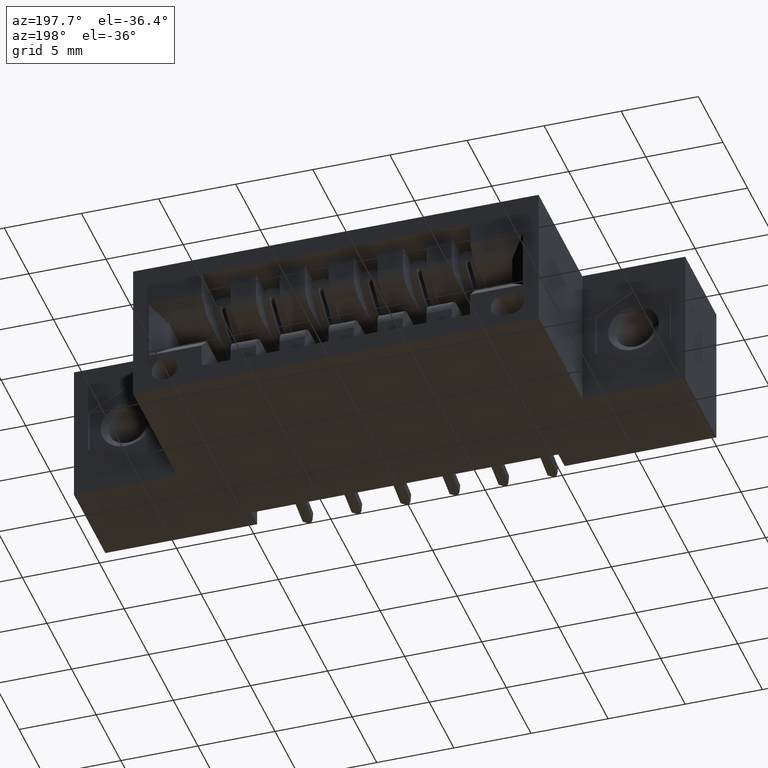
[diagram: clean part render]
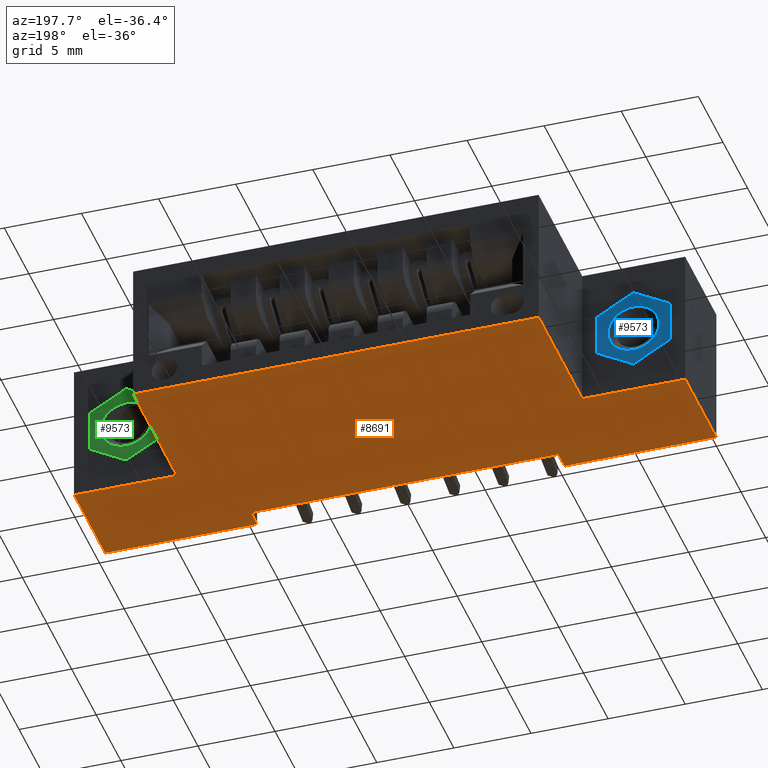
[diagram: same view with three faces highlighted in distinct colors, each labeled with its STEP entity id]
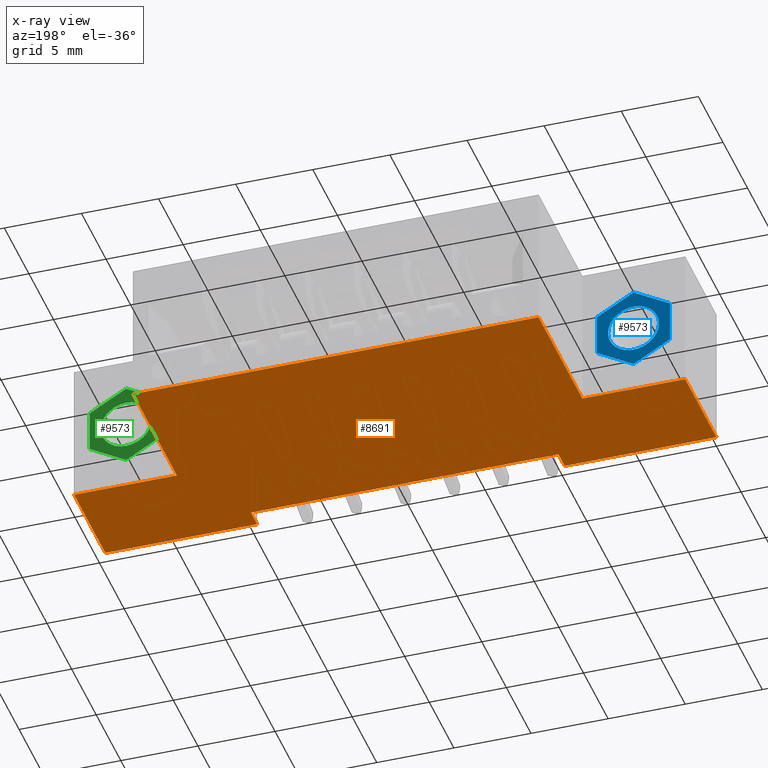
[diagram: x-ray of the same camera — body ghosted, the three highlighted faces saturated]
A machine part, auxiliary view with three faces highlighted in distinct colors.
The next image is the same camera in x-ray (body ghosted, the three faces saturated) — at least one of them is partly hidden behind the body in this view.
Their STEP definitions:

[orange] entity #8691 — the highlighted planar face has unit normal (-0, 0, 1).
#39 = DIRECTION ( 'NONE',  ( 1.000000000000000000, 0.0000000000000000000, 8.755923056616229400E-017 ) ) ;
#233 = VECTOR ( 'NONE', #1153, 39.37007874015748100 ) ;
#301 = CARTESIAN_POINT ( 'NONE',  ( 1.560000000000000100, 0.2500000000000001100, -0.3700000000000000000 ) ) ;
#335 = EDGE_CURVE ( 'NONE', #1226, #3853, #6356, .T. ) ;
#449 = VECTOR ( 'NONE', #8376, 39.37007874015748100 ) ;
#564 = CARTESIAN_POINT ( 'NONE',  ( 0.3874999999999999000, 0.05000000000000000300, -0.3700000000000001600 ) ) ;
#643 = VECTOR ( 'NONE', #8805, 39.37007874015748100 ) ;
#705 = VECTOR ( 'NONE', #853, 39.37007874015748100 ) ;
#770 = VERTEX_POINT ( 'NONE', #301 ) ;
#811 = EDGE_CURVE ( 'NONE', #8754, #1267, #5006, .T. ) ;
#824 = CARTESIAN_POINT ( 'NONE',  ( 0.0000000000000000000, 0.0000000000000000000, -0.3700000000000001600 ) ) ;
#832 = VECTOR ( 'NONE', #3348, 39.37007874015748100 ) ;
#853 = DIRECTION ( 'NONE',  ( -1.000000000000000000, -0.0000000000000000000, -8.755923056616228200E-017 ) ) ;
#871 = VERTEX_POINT ( 'NONE', #2312 ) ;
#1153 = DIRECTION ( 'NONE',  ( -0.0000000000000000000, -1.000000000000000000, -0.0000000000000000000 ) ) ;
#1170 = CARTESIAN_POINT ( 'NONE',  ( 1.297500000000000100, 0.5999999999999999800, -0.3699999999999999400 ) ) ;
#1226 = VERTEX_POINT ( 'NONE', #2952 ) ;
#1267 = VERTEX_POINT ( 'NONE', #7554 ) ;
#1428 = VERTEX_POINT ( 'NONE', #7823 ) ;
#1436 = CARTESIAN_POINT ( 'NONE',  ( 0.3874999999999999000, 0.05000000000000000300, -0.3700000000000001600 ) ) ;
#1544 = DIRECTION ( 'NONE',  ( 1.000000000000000000, 0.0000000000000000000, 1.740030569212906400E-016 ) ) ;
#2216 = CARTESIAN_POINT ( 'NONE',  ( 0.0000000000000000000, 0.5999999999999999800, -0.3700000000000001600 ) ) ;
#2312 = CARTESIAN_POINT ( 'NONE',  ( 1.172500000000000100, 0.0000000000000000000, -0.3700000000000000000 ) ) ;
#2395 = VECTOR ( 'NONE', #7687, 39.37007874015748100 ) ;
#2541 = LINE ( 'NONE', #9567, #449 ) ;
#2744 = ORIENTED_EDGE ( 'NONE', *, *, #4431, .T. ) ;
#2764 = CARTESIAN_POINT ( 'NONE',  ( 0.3874999999999999000, 0.05000000000000000300, -0.3700000000000001600 ) ) ;
#2952 = CARTESIAN_POINT ( 'NONE',  ( 0.2625000000000000100, 0.2500000000000000000, -0.3700000000000001600 ) ) ;
#3097 = CARTESIAN_POINT ( 'NONE',  ( 0.0000000000000000000, 0.0000000000000000000, -0.3700000000000001600 ) ) ;
#3248 = EDGE_CURVE ( 'NONE', #4095, #4345, #4841, .T. ) ;
#3287 = DIRECTION ( 'NONE',  ( -1.000000000000000000, -0.0000000000000000000, -0.0000000000000000000 ) ) ;
#3348 = DIRECTION ( 'NONE',  ( -0.0000000000000000000, 1.000000000000000000, -0.0000000000000000000 ) ) ;
#3500 = CARTESIAN_POINT ( 'NONE',  ( 0.0000000000000000000, 0.2500000000000000000, -0.3700000000000001600 ) ) ;
#3661 = DIRECTION ( 'NONE',  ( -1.000000000000000000, -0.0000000000000000000, -8.755923056616228200E-017 ) ) ;
#3853 = VERTEX_POINT ( 'NONE', #7157 ) ;
#4068 = VERTEX_POINT ( 'NONE', #4970 ) ;
#4095 = VERTEX_POINT ( 'NONE', #3500 ) ;
#4140 = VECTOR ( 'NONE', #3287, 39.37007874015748100 ) ;
#4176 = EDGE_CURVE ( 'NONE', #7069, #3853, #10116, .T. ) ;
#4345 = VERTEX_POINT ( 'NONE', #824 ) ;
#4431 = EDGE_CURVE ( 'NONE', #4068, #871, #5906, .T. ) ;
#4498 = DIRECTION ( 'NONE',  ( -0.0000000000000000000, -1.000000000000000000, -0.0000000000000000000 ) ) ;
#4538 = ORIENTED_EDGE ( 'NONE', *, *, #9475, .T. ) ;
#4669 = LINE ( 'NONE', #7193, #8190 ) ;
#4751 = CARTESIAN_POINT ( 'NONE',  ( 0.0000000000000000000, 0.5999999999999999800, -0.3700000000000001600 ) ) ;
#4841 = LINE ( 'NONE', #2216, #2395 ) ;
#4842 = CARTESIAN_POINT ( 'NONE',  ( 0.0000000000000000000, 0.0000000000000000000, -0.3700000000000001600 ) ) ;
#4900 = ORIENTED_EDGE ( 'NONE', *, *, #335, .T. ) ;
#4970 = CARTESIAN_POINT ( 'NONE',  ( 1.560000000000000100, 0.0000000000000000000, -0.3700000000000000000 ) ) ;
#5006 = LINE ( 'NONE', #564, #6827 ) ;
#5069 = ORIENTED_EDGE ( 'NONE', *, *, #3248, .F. ) ;
#5107 = LINE ( 'NONE', #1436, #8390 ) ;
#5839 = CARTESIAN_POINT ( 'NONE',  ( 1.560000000000000100, 0.5999999999999999800, -0.3700000000000000000 ) ) ;
#5906 = LINE ( 'NONE', #4842, #643 ) ;
#6128 = ORIENTED_EDGE ( 'NONE', *, *, #9195, .F. ) ;
#6133 = ORIENTED_EDGE ( 'NONE', *, *, #8654, .F. ) ;
#6354 = VECTOR ( 'NONE', #9819, 39.37007874015748100 ) ;
#6356 = LINE ( 'NONE', #7555, #832 ) ;
#6531 = ORIENTED_EDGE ( 'NONE', *, *, #6981, .T. ) ;
#6715 = LINE ( 'NONE', #6959, #4140 ) ;
#6762 = CARTESIAN_POINT ( 'NONE',  ( 0.0000000000000000000, 0.5999999999999999800, -0.3700000000000001600 ) ) ;
#6827 = VECTOR ( 'NONE', #4498, 39.37007874015748100 ) ;
#6864 = CARTESIAN_POINT ( 'NONE',  ( 1.172500000000000100, 0.05000000000000000300, -0.3700000000000000000 ) ) ;
#6959 = CARTESIAN_POINT ( 'NONE',  ( 0.0000000000000000000, 0.2500000000000000000, -0.3700000000000001600 ) ) ;
#6981 = EDGE_CURVE ( 'NONE', #1267, #4345, #7940, .T. ) ;
#7069 = VERTEX_POINT ( 'NONE', #1170 ) ;
#7090 = EDGE_CURVE ( 'NONE', #1428, #871, #7190, .T. ) ;
#7131 = PLANE ( 'NONE',  #9122 ) ;
#7157 = CARTESIAN_POINT ( 'NONE',  ( 0.2625000000000000100, 0.5999999999999999800, -0.3700000000000001600 ) ) ;
#7166 = DIRECTION ( 'NONE',  ( -8.755923056616229400E-017, 0.0000000000000000000, 1.000000000000000000 ) ) ;
#7190 = LINE ( 'NONE', #6864, #6354 ) ;
#7193 = CARTESIAN_POINT ( 'NONE',  ( 1.297500000000000100, 0.2500000000000000000, -0.3699999999999999400 ) ) ;
#7378 = ORIENTED_EDGE ( 'NONE', *, *, #9919, .F. ) ;
#7554 = CARTESIAN_POINT ( 'NONE',  ( 0.3874999999999999000, 0.0000000000000000000, -0.3700000000000001600 ) ) ;
#7555 = CARTESIAN_POINT ( 'NONE',  ( 0.2625000000000000100, 0.2500000000000000000, -0.3700000000000001600 ) ) ;
#7687 = DIRECTION ( 'NONE',  ( -0.0000000000000000000, -1.000000000000000000, -0.0000000000000000000 ) ) ;
#7823 = CARTESIAN_POINT ( 'NONE',  ( 1.172500000000000100, 0.05000000000000000300, -0.3700000000000000000 ) ) ;
#7940 = LINE ( 'NONE', #3097, #705 ) ;
#8190 = VECTOR ( 'NONE', #9498, 39.37007874015748100 ) ;
#8376 = DIRECTION ( 'NONE',  ( -1.000000000000000000, 0.0000000000000000000, 2.601759993965965000E-016 ) ) ;
#8390 = VECTOR ( 'NONE', #1544, 39.37007874015748100 ) ;
#8654 = EDGE_CURVE ( 'NONE', #8754, #1428, #5107, .T. ) ;
#8691 = ADVANCED_FACE ( 'NONE', ( #9759 ), #7131, .F. ) ;
#8754 = VERTEX_POINT ( 'NONE', #2764 ) ;
#8805 = DIRECTION ( 'NONE',  ( -1.000000000000000000, -0.0000000000000000000, -8.755923056616228200E-017 ) ) ;
#9122 = AXIS2_PLACEMENT_3D ( 'NONE', #4751, #7166, #39 ) ;
#9195 = EDGE_CURVE ( 'NONE', #9829, #7069, #4669, .T. ) ;
#9475 = EDGE_CURVE ( 'NONE', #770, #4068, #9662, .T. ) ;
#9498 = DIRECTION ( 'NONE',  ( -0.0000000000000000000, 1.000000000000000000, -0.0000000000000000000 ) ) ;
#9567 = CARTESIAN_POINT ( 'NONE',  ( 1.560000000000000100, 0.2500000000000000000, -0.3700000000000000000 ) ) ;
#9601 = EDGE_LOOP ( 'NONE', ( #9607, #6128, #10034, #4538, #2744, #9847, #6133, #10130, #6531, #5069, #7378, #4900 ) ) ;
#9607 = ORIENTED_EDGE ( 'NONE', *, *, #4176, .F. ) ;
#9662 = LINE ( 'NONE', #5839, #233 ) ;
#9759 = FACE_OUTER_BOUND ( 'NONE', #9601, .T. ) ;
#9819 = DIRECTION ( 'NONE',  ( -0.0000000000000000000, -1.000000000000000000, -0.0000000000000000000 ) ) ;
#9829 = VERTEX_POINT ( 'NONE', #9958 ) ;
#9847 = ORIENTED_EDGE ( 'NONE', *, *, #7090, .F. ) ;
#9848 = VECTOR ( 'NONE', #3661, 39.37007874015748100 ) ;
#9919 = EDGE_CURVE ( 'NONE', #1226, #4095, #6715, .T. ) ;
#9958 = CARTESIAN_POINT ( 'NONE',  ( 1.297500000000000100, 0.2500000000000000000, -0.3699999999999999400 ) ) ;
#10034 = ORIENTED_EDGE ( 'NONE', *, *, #10083, .F. ) ;
#10083 = EDGE_CURVE ( 'NONE', #770, #9829, #2541, .T. ) ;
#10116 = LINE ( 'NONE', #6762, #9848 ) ;
#10130 = ORIENTED_EDGE ( 'NONE', *, *, #811, .T. ) ;

[blue] entity #9573 — the highlighted planar face has unit normal (0, -1, 0).
#124 = CARTESIAN_POINT ( 'NONE',  ( -5.122214988120493300E-016, 0.0000000000000000000, 0.1079645003384601700 ) ) ;
#227 = CARTESIAN_POINT ( 'NONE',  ( 1.707404996040164500E-017, -6.829619984160658000E-017, -0.06500000000000000200 ) ) ;
#714 = CARTESIAN_POINT ( 'NONE',  ( -0.09349999999999994400, 0.0000000000000000000, 0.05398225016923036100 ) ) ;
#782 = EDGE_CURVE ( 'NONE', #4773, #2966, #7309, .T. ) ;
#1257 = ORIENTED_EDGE ( 'NONE', *, *, #9733, .F. ) ;
#1349 = CARTESIAN_POINT ( 'NONE',  ( -0.09349999999999997200, 0.0000000000000000000, -0.05398225016922977800 ) ) ;
#1531 = VERTEX_POINT ( 'NONE', #227 ) ;
#1582 = FACE_OUTER_BOUND ( 'NONE', #10000, .T. ) ;
#1807 = CIRCLE ( 'NONE', #9566, 0.06500000000000019700 ) ;
#2094 = CARTESIAN_POINT ( 'NONE',  ( 0.09349999999999943100, 0.0000000000000000000, -0.05398225016923001400 ) ) ;
#2375 = EDGE_CURVE ( 'NONE', #2702, #2801, #7793, .T. ) ;
#2396 = ORIENTED_EDGE ( 'NONE', *, *, #2375, .F. ) ;
#2414 = ORIENTED_EDGE ( 'NONE', *, *, #8858, .F. ) ;
#2440 = EDGE_CURVE ( 'NONE', #8240, #1531, #1807, .T. ) ;
#2459 = DIRECTION ( 'NONE',  ( 0.0000000000000000000, 0.0000000000000000000, 1.000000000000000000 ) ) ;
#2702 = VERTEX_POINT ( 'NONE', #9905 ) ;
#2798 = LINE ( 'NONE', #9229, #5485 ) ;
#2801 = VERTEX_POINT ( 'NONE', #1349 ) ;
#2902 = DIRECTION ( 'NONE',  ( 0.0000000000000000000, 0.0000000000000000000, 1.000000000000000000 ) ) ;
#2966 = VERTEX_POINT ( 'NONE', #124 ) ;
#3155 = CARTESIAN_POINT ( 'NONE',  ( 0.09349999999999998600, 0.0000000000000000000, 0.05398225016923022300 ) ) ;
#3183 = FACE_BOUND ( 'NONE', #4312, .T. ) ;
#3201 = CARTESIAN_POINT ( 'NONE',  ( 1.707404996040164500E-017, -6.829619984160658000E-017, 2.048885995248197400E-016 ) ) ;
#3247 = CARTESIAN_POINT ( 'NONE',  ( 0.09349999999999998600, 0.0000000000000000000, 0.05398225016923022300 ) ) ;
#3313 = ORIENTED_EDGE ( 'NONE', *, *, #7231, .F. ) ;
#3447 = CARTESIAN_POINT ( 'NONE',  ( 1.707404996040164500E-017, -6.829619984160658000E-017, 2.048885995248197400E-016 ) ) ;
#3707 = PLANE ( 'NONE',  #9489 ) ;
#3855 = DIRECTION ( 'NONE',  ( 0.0000000000000000000, -1.000000000000000000, 0.0000000000000000000 ) ) ;
#3892 = VECTOR ( 'NONE', #6829, 39.37007874015748100 ) ;
#4123 = DIRECTION ( 'NONE',  ( 0.0000000000000000000, -1.000000000000000000, 0.0000000000000000000 ) ) ;
#4312 = EDGE_LOOP ( 'NONE', ( #3313, #5482 ) ) ;
#4399 = ORIENTED_EDGE ( 'NONE', *, *, #5073, .F. ) ;
#4773 = VERTEX_POINT ( 'NONE', #714 ) ;
#5031 = ORIENTED_EDGE ( 'NONE', *, *, #6105, .F. ) ;
#5073 = EDGE_CURVE ( 'NONE', #2966, #5673, #9706, .T. ) ;
#5156 = CARTESIAN_POINT ( 'NONE',  ( -0.09349999999999994400, 0.0000000000000000000, 0.05398225016923036100 ) ) ;
#5482 = ORIENTED_EDGE ( 'NONE', *, *, #2440, .F. ) ;
#5485 = VECTOR ( 'NONE', #2459, 39.37007874015748100 ) ;
#5673 = VERTEX_POINT ( 'NONE', #3155 ) ;
#5883 = CARTESIAN_POINT ( 'NONE',  ( 2.503425415485946300E-017, -6.829619984160658000E-017, 0.06500000000000040500 ) ) ;
#5972 = CIRCLE ( 'NONE', #6222, 0.06500000000000019700 ) ;
#6105 = EDGE_CURVE ( 'NONE', #5673, #7969, #7334, .T. ) ;
#6222 = AXIS2_PLACEMENT_3D ( 'NONE', #3201, #3855, #8686 ) ;
#6241 = DIRECTION ( 'NONE',  ( -0.8660254037844384900, 0.0000000000000000000, -0.5000000000000002200 ) ) ;
#6283 = DIRECTION ( 'NONE',  ( -0.8660254037844386000, 0.0000000000000000000, 0.5000000000000000000 ) ) ;
#6450 = DIRECTION ( 'NONE',  ( 0.0000000000000000000, 0.0000000000000000000, -1.000000000000000000 ) ) ;
#6518 = CARTESIAN_POINT ( 'NONE',  ( 0.09349999999999943100, 0.0000000000000000000, -0.05398225016923001400 ) ) ;
#6829 = DIRECTION ( 'NONE',  ( 0.8660254037844389300, 0.0000000000000000000, 0.4999999999999994400 ) ) ;
#6917 = DIRECTION ( 'NONE',  ( 0.0000000000000000000, 1.000000000000000000, 0.0000000000000000000 ) ) ;
#7185 = DIRECTION ( 'NONE',  ( -1.276756478318928800E-015, 0.0000000000000000000, -1.000000000000000000 ) ) ;
#7231 = EDGE_CURVE ( 'NONE', #1531, #8240, #5972, .T. ) ;
#7309 = LINE ( 'NONE', #5156, #3892 ) ;
#7334 = LINE ( 'NONE', #3247, #7838 ) ;
#7415 = LINE ( 'NONE', #2094, #9756 ) ;
#7457 = ORIENTED_EDGE ( 'NONE', *, *, #782, .F. ) ;
#7597 = CARTESIAN_POINT ( 'NONE',  ( 3.414809992080329000E-017, 0.0000000000000000000, -0.1079645003384598500 ) ) ;
#7600 = VECTOR ( 'NONE', #8744, 39.37007874015748100 ) ;
#7793 = LINE ( 'NONE', #7919, #9885 ) ;
#7838 = VECTOR ( 'NONE', #7185, 39.37007874015748100 ) ;
#7919 = CARTESIAN_POINT ( 'NONE',  ( 3.414809992080329000E-017, 0.0000000000000000000, -0.1079645003384598500 ) ) ;
#7969 = VERTEX_POINT ( 'NONE', #6518 ) ;
#8240 = VERTEX_POINT ( 'NONE', #5883 ) ;
#8686 = DIRECTION ( 'NONE',  ( 0.0000000000000000000, 0.0000000000000000000, -1.000000000000000000 ) ) ;
#8744 = DIRECTION ( 'NONE',  ( 0.8660254037844389300, 0.0000000000000000000, -0.4999999999999994400 ) ) ;
#8858 = EDGE_CURVE ( 'NONE', #7969, #2702, #7415, .T. ) ;
#9229 = CARTESIAN_POINT ( 'NONE',  ( -0.09349999999999997200, 0.0000000000000000000, -0.05398225016922977800 ) ) ;
#9274 = CARTESIAN_POINT ( 'NONE',  ( -5.122214988120493300E-016, 0.0000000000000000000, 0.1079645003384601700 ) ) ;
#9489 = AXIS2_PLACEMENT_3D ( 'NONE', #7597, #6917, #2902 ) ;
#9566 = AXIS2_PLACEMENT_3D ( 'NONE', #3447, #4123, #6450 ) ;
#9573 = ADVANCED_FACE ( 'NONE', ( #3183, #1582 ), #3707, .F. ) ;
#9706 = LINE ( 'NONE', #9274, #7600 ) ;
#9733 = EDGE_CURVE ( 'NONE', #2801, #4773, #2798, .T. ) ;
#9756 = VECTOR ( 'NONE', #6241, 39.37007874015748900 ) ;
#9885 = VECTOR ( 'NONE', #6283, 39.37007874015748100 ) ;
#9905 = CARTESIAN_POINT ( 'NONE',  ( 3.414809992080329000E-017, 0.0000000000000000000, -0.1079645003384598500 ) ) ;
#10000 = EDGE_LOOP ( 'NONE', ( #2414, #5031, #4399, #7457, #1257, #2396 ) ) ;

[green] entity #9573 — the highlighted planar face has unit normal (0, -1, 0).
#124 = CARTESIAN_POINT ( 'NONE',  ( -5.122214988120493300E-016, 0.0000000000000000000, 0.1079645003384601700 ) ) ;
#227 = CARTESIAN_POINT ( 'NONE',  ( 1.707404996040164500E-017, -6.829619984160658000E-017, -0.06500000000000000200 ) ) ;
#714 = CARTESIAN_POINT ( 'NONE',  ( -0.09349999999999994400, 0.0000000000000000000, 0.05398225016923036100 ) ) ;
#782 = EDGE_CURVE ( 'NONE', #4773, #2966, #7309, .T. ) ;
#1257 = ORIENTED_EDGE ( 'NONE', *, *, #9733, .F. ) ;
#1349 = CARTESIAN_POINT ( 'NONE',  ( -0.09349999999999997200, 0.0000000000000000000, -0.05398225016922977800 ) ) ;
#1531 = VERTEX_POINT ( 'NONE', #227 ) ;
#1582 = FACE_OUTER_BOUND ( 'NONE', #10000, .T. ) ;
#1807 = CIRCLE ( 'NONE', #9566, 0.06500000000000019700 ) ;
#2094 = CARTESIAN_POINT ( 'NONE',  ( 0.09349999999999943100, 0.0000000000000000000, -0.05398225016923001400 ) ) ;
#2375 = EDGE_CURVE ( 'NONE', #2702, #2801, #7793, .T. ) ;
#2396 = ORIENTED_EDGE ( 'NONE', *, *, #2375, .F. ) ;
#2414 = ORIENTED_EDGE ( 'NONE', *, *, #8858, .F. ) ;
#2440 = EDGE_CURVE ( 'NONE', #8240, #1531, #1807, .T. ) ;
#2459 = DIRECTION ( 'NONE',  ( 0.0000000000000000000, 0.0000000000000000000, 1.000000000000000000 ) ) ;
#2702 = VERTEX_POINT ( 'NONE', #9905 ) ;
#2798 = LINE ( 'NONE', #9229, #5485 ) ;
#2801 = VERTEX_POINT ( 'NONE', #1349 ) ;
#2902 = DIRECTION ( 'NONE',  ( 0.0000000000000000000, 0.0000000000000000000, 1.000000000000000000 ) ) ;
#2966 = VERTEX_POINT ( 'NONE', #124 ) ;
#3155 = CARTESIAN_POINT ( 'NONE',  ( 0.09349999999999998600, 0.0000000000000000000, 0.05398225016923022300 ) ) ;
#3183 = FACE_BOUND ( 'NONE', #4312, .T. ) ;
#3201 = CARTESIAN_POINT ( 'NONE',  ( 1.707404996040164500E-017, -6.829619984160658000E-017, 2.048885995248197400E-016 ) ) ;
#3247 = CARTESIAN_POINT ( 'NONE',  ( 0.09349999999999998600, 0.0000000000000000000, 0.05398225016923022300 ) ) ;
#3313 = ORIENTED_EDGE ( 'NONE', *, *, #7231, .F. ) ;
#3447 = CARTESIAN_POINT ( 'NONE',  ( 1.707404996040164500E-017, -6.829619984160658000E-017, 2.048885995248197400E-016 ) ) ;
#3707 = PLANE ( 'NONE',  #9489 ) ;
#3855 = DIRECTION ( 'NONE',  ( 0.0000000000000000000, -1.000000000000000000, 0.0000000000000000000 ) ) ;
#3892 = VECTOR ( 'NONE', #6829, 39.37007874015748100 ) ;
#4123 = DIRECTION ( 'NONE',  ( 0.0000000000000000000, -1.000000000000000000, 0.0000000000000000000 ) ) ;
#4312 = EDGE_LOOP ( 'NONE', ( #3313, #5482 ) ) ;
#4399 = ORIENTED_EDGE ( 'NONE', *, *, #5073, .F. ) ;
#4773 = VERTEX_POINT ( 'NONE', #714 ) ;
#5031 = ORIENTED_EDGE ( 'NONE', *, *, #6105, .F. ) ;
#5073 = EDGE_CURVE ( 'NONE', #2966, #5673, #9706, .T. ) ;
#5156 = CARTESIAN_POINT ( 'NONE',  ( -0.09349999999999994400, 0.0000000000000000000, 0.05398225016923036100 ) ) ;
#5482 = ORIENTED_EDGE ( 'NONE', *, *, #2440, .F. ) ;
#5485 = VECTOR ( 'NONE', #2459, 39.37007874015748100 ) ;
#5673 = VERTEX_POINT ( 'NONE', #3155 ) ;
#5883 = CARTESIAN_POINT ( 'NONE',  ( 2.503425415485946300E-017, -6.829619984160658000E-017, 0.06500000000000040500 ) ) ;
#5972 = CIRCLE ( 'NONE', #6222, 0.06500000000000019700 ) ;
#6105 = EDGE_CURVE ( 'NONE', #5673, #7969, #7334, .T. ) ;
#6222 = AXIS2_PLACEMENT_3D ( 'NONE', #3201, #3855, #8686 ) ;
#6241 = DIRECTION ( 'NONE',  ( -0.8660254037844384900, 0.0000000000000000000, -0.5000000000000002200 ) ) ;
#6283 = DIRECTION ( 'NONE',  ( -0.8660254037844386000, 0.0000000000000000000, 0.5000000000000000000 ) ) ;
#6450 = DIRECTION ( 'NONE',  ( 0.0000000000000000000, 0.0000000000000000000, -1.000000000000000000 ) ) ;
#6518 = CARTESIAN_POINT ( 'NONE',  ( 0.09349999999999943100, 0.0000000000000000000, -0.05398225016923001400 ) ) ;
#6829 = DIRECTION ( 'NONE',  ( 0.8660254037844389300, 0.0000000000000000000, 0.4999999999999994400 ) ) ;
#6917 = DIRECTION ( 'NONE',  ( 0.0000000000000000000, 1.000000000000000000, 0.0000000000000000000 ) ) ;
#7185 = DIRECTION ( 'NONE',  ( -1.276756478318928800E-015, 0.0000000000000000000, -1.000000000000000000 ) ) ;
#7231 = EDGE_CURVE ( 'NONE', #1531, #8240, #5972, .T. ) ;
#7309 = LINE ( 'NONE', #5156, #3892 ) ;
#7334 = LINE ( 'NONE', #3247, #7838 ) ;
#7415 = LINE ( 'NONE', #2094, #9756 ) ;
#7457 = ORIENTED_EDGE ( 'NONE', *, *, #782, .F. ) ;
#7597 = CARTESIAN_POINT ( 'NONE',  ( 3.414809992080329000E-017, 0.0000000000000000000, -0.1079645003384598500 ) ) ;
#7600 = VECTOR ( 'NONE', #8744, 39.37007874015748100 ) ;
#7793 = LINE ( 'NONE', #7919, #9885 ) ;
#7838 = VECTOR ( 'NONE', #7185, 39.37007874015748100 ) ;
#7919 = CARTESIAN_POINT ( 'NONE',  ( 3.414809992080329000E-017, 0.0000000000000000000, -0.1079645003384598500 ) ) ;
#7969 = VERTEX_POINT ( 'NONE', #6518 ) ;
#8240 = VERTEX_POINT ( 'NONE', #5883 ) ;
#8686 = DIRECTION ( 'NONE',  ( 0.0000000000000000000, 0.0000000000000000000, -1.000000000000000000 ) ) ;
#8744 = DIRECTION ( 'NONE',  ( 0.8660254037844389300, 0.0000000000000000000, -0.4999999999999994400 ) ) ;
#8858 = EDGE_CURVE ( 'NONE', #7969, #2702, #7415, .T. ) ;
#9229 = CARTESIAN_POINT ( 'NONE',  ( -0.09349999999999997200, 0.0000000000000000000, -0.05398225016922977800 ) ) ;
#9274 = CARTESIAN_POINT ( 'NONE',  ( -5.122214988120493300E-016, 0.0000000000000000000, 0.1079645003384601700 ) ) ;
#9489 = AXIS2_PLACEMENT_3D ( 'NONE', #7597, #6917, #2902 ) ;
#9566 = AXIS2_PLACEMENT_3D ( 'NONE', #3447, #4123, #6450 ) ;
#9573 = ADVANCED_FACE ( 'NONE', ( #3183, #1582 ), #3707, .F. ) ;
#9706 = LINE ( 'NONE', #9274, #7600 ) ;
#9733 = EDGE_CURVE ( 'NONE', #2801, #4773, #2798, .T. ) ;
#9756 = VECTOR ( 'NONE', #6241, 39.37007874015748900 ) ;
#9885 = VECTOR ( 'NONE', #6283, 39.37007874015748100 ) ;
#9905 = CARTESIAN_POINT ( 'NONE',  ( 3.414809992080329000E-017, 0.0000000000000000000, -0.1079645003384598500 ) ) ;
#10000 = EDGE_LOOP ( 'NONE', ( #2414, #5031, #4399, #7457, #1257, #2396 ) ) ;